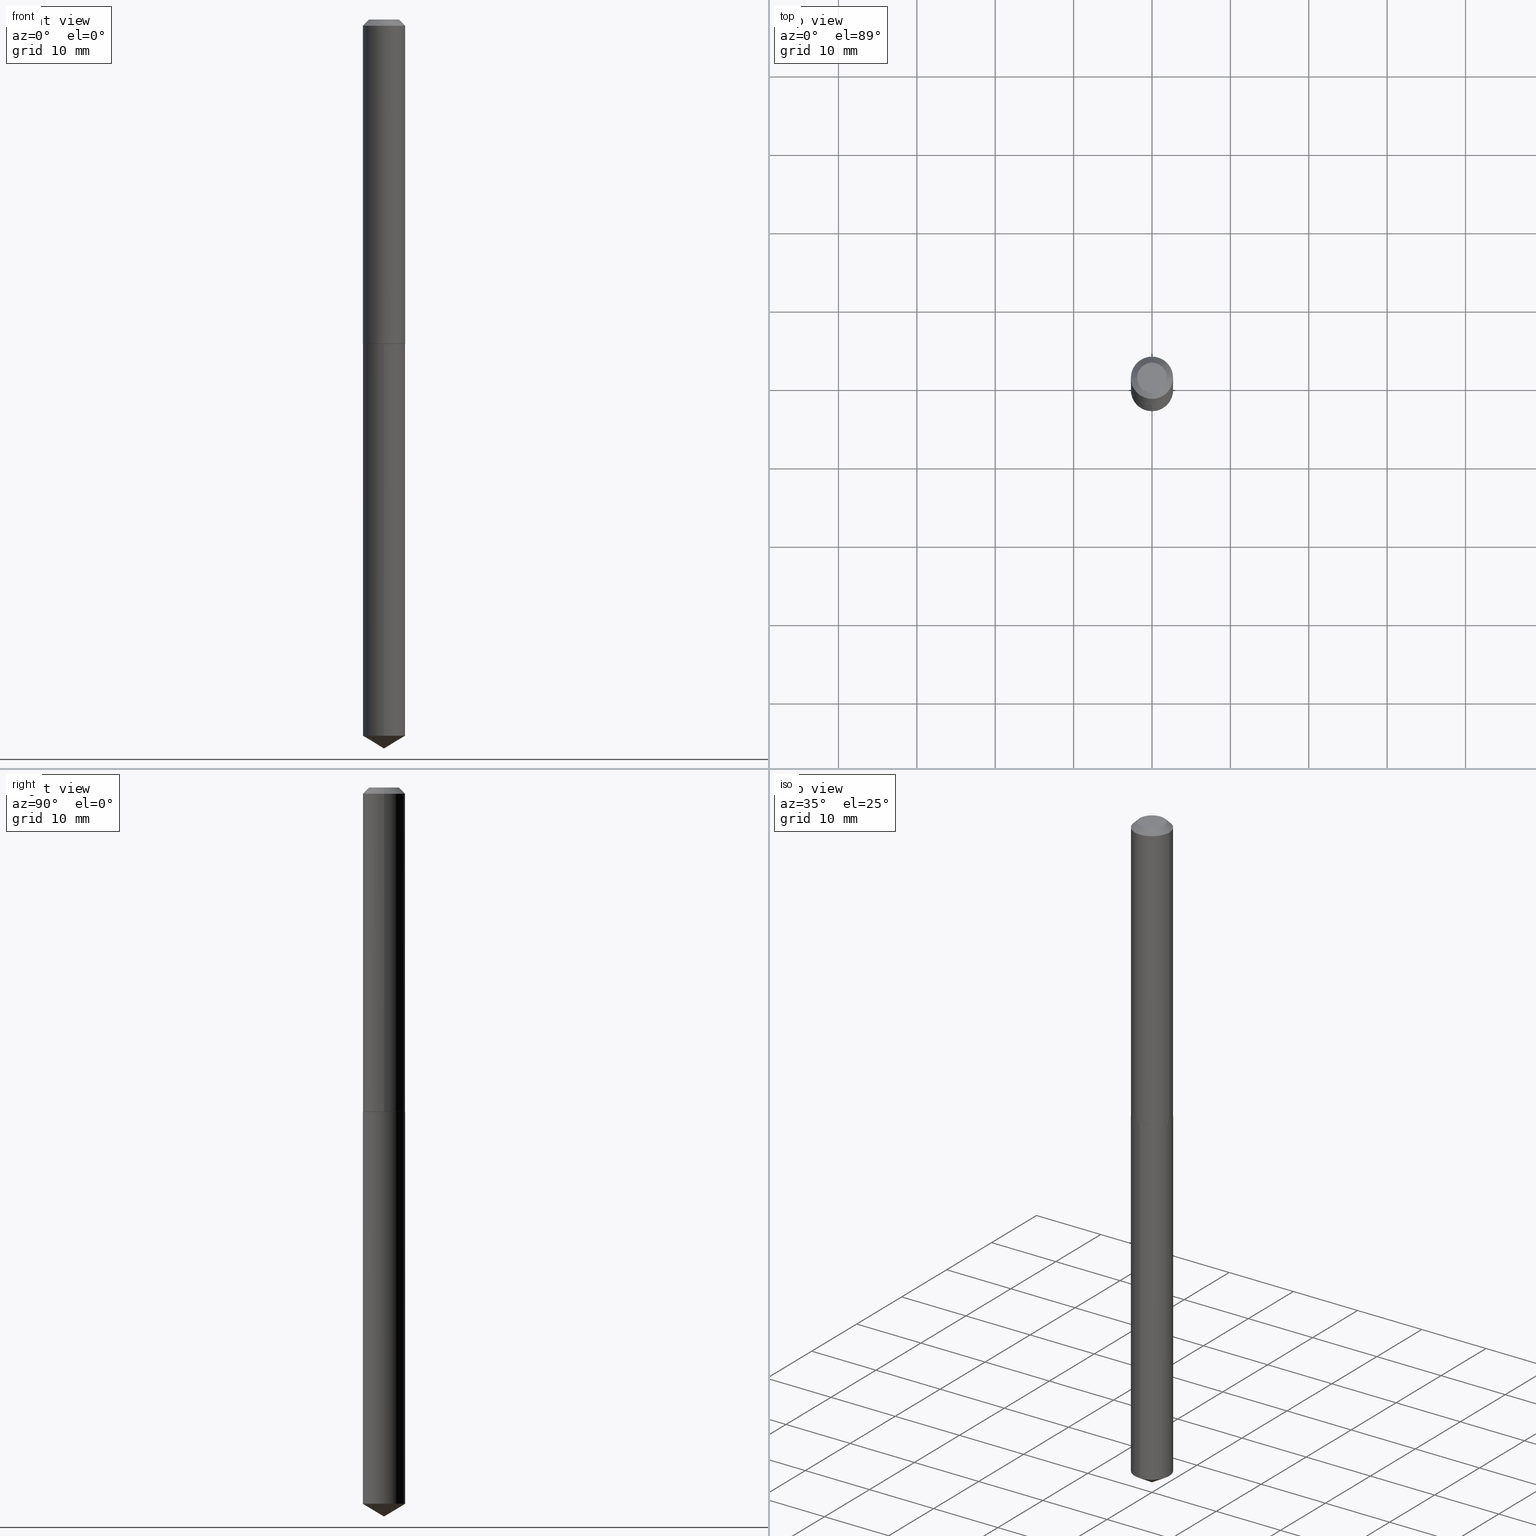
[diagram: canonical four-view strip — front | top / right | iso, engineering-drawing reading convention]
A machine part, canonical four-view strip (front | top / right | iso — engineering-drawing reading convention). The complete STEP part file that produces these views, byte-faithful:
ISO-10303-21;
HEADER;
FILE_DESCRIPTION (( 'STEP AP203' ),
    '1' );
FILE_NAME ('68329.STEP',
    '2024-04-23T13:07:08',
    ( '' ),
    ( '' ),
    'SwSTEP 2.0',
    'SolidWorks 2023',
    '' );
FILE_SCHEMA (( 'CONFIG_CONTROL_DESIGN' ));
ENDSEC;

DATA;
#1 = FACE_OUTER_BOUND ( 'NONE', #201, .T. ) ;
#2 = DIRECTION ( 'NONE',  ( -2.445471064129030757E-29, 3.491478105338975142E-15, 1.000000000000000000 ) ) ;
#3 = CARTESIAN_POINT ( 'NONE',  ( 0.1063000000000000195, -8.513977244768993380E-16, -0.03125000000000021511 ) ) ;
#4 = VECTOR ( 'NONE', #248, 39.37007874015748143 ) ;
#5 =( LENGTH_UNIT ( ) NAMED_UNIT ( * ) SI_UNIT ( $, .METRE. ) );
#6 = EDGE_CURVE ( 'NONE', #24, #20, #134, .T. ) ;
#7 = EDGE_CURVE ( 'NONE', #83, #351, #84, .T. ) ;
#8 = CARTESIAN_POINT ( 'NONE',  ( 3.984646872798061156E-29, -5.689019693511021444E-15, -1.629399999999999737 ) ) ;
#9 =( NAMED_UNIT ( * ) PLANE_ANGLE_UNIT ( ) SI_UNIT ( $, .RADIAN. ) );
#10 = EDGE_CURVE ( 'NONE', #168, #197, #125, .T. ) ;
#11 = AXIS2_PLACEMENT_3D ( 'NONE', #97, #214, #69 ) ;
#12 = AXIS2_PLACEMENT_3D ( 'NONE', #306, #213, #285 ) ;
#13 = ORIENTED_EDGE ( 'NONE', *, *, #165, .F. ) ;
#14 = AXIS2_PLACEMENT_3D ( 'NONE', #47, #295, #145 ) ;
#15 = ADVANCED_FACE ( 'NONE', ( #1 ), #363, .T. ) ;
#16 = ORIENTED_EDGE ( 'NONE', *, *, #141, .F. ) ;
#17 = ADVANCED_FACE ( 'NONE', ( #338 ), #66, .F. ) ;
#18 = DIRECTION ( 'NONE',  ( 1.000000000000000000, -6.982962677686265922E-15, 4.876182450887181548E-29 ) ) ;
#19 = DATE_AND_TIME ( #151, #40 ) ;
#20 = VERTEX_POINT ( 'NONE', #194 ) ;
#21 = FACE_OUTER_BOUND ( 'NONE', #177, .T. ) ;
#22 = PERSON_AND_ORGANIZATION ( #244, #48 ) ;
#23 = EDGE_CURVE ( 'NONE', #351, #108, #280, .T. ) ;
#24 = VERTEX_POINT ( 'NONE', #315 ) ;
#25 = AXIS2_PLACEMENT_3D ( 'NONE', #185, #127, #249 ) ;
#26 = AXIS2_PLACEMENT_3D ( 'NONE', #67, #243, #70 ) ;
#27 = ORIENTED_EDGE ( 'NONE', *, *, #23, .F. ) ;
#28 = CARTESIAN_POINT ( 'NONE',  ( 7.642090019328603538E-31, -1.091087918388490390E-16, -0.03125000000000021511 ) ) ;
#29 = APPROVAL_STATUS ( 'not_yet_approved' ) ;
#30 = DIRECTION ( 'NONE',  ( -2.445468806185136597E-29, 3.491481338843145583E-15, 1.000000000000000000 ) ) ;
#31 = CC_DESIGN_PERSON_AND_ORGANIZATION_ASSIGNMENT ( #358, #328, ( #75 ) ) ;
#32 = DIRECTION ( 'NONE',  ( -2.445471064129030757E-29, 3.491478105338975142E-15, 1.000000000000000000 ) ) ;
#33 = CC_DESIGN_PERSON_AND_ORGANIZATION_ASSIGNMENT ( #22, #52, ( #129 ) ) ;
#34 = AXIS2_PLACEMENT_3D ( 'NONE', #281, #131, #98 ) ;
#35 = DIRECTION ( 'NONE',  ( -2.445471064129030757E-29, 3.491478105338975142E-15, 1.000000000000000000 ) ) ;
#36 = APPROVAL ( #60, 'UNSPECIFIED' ) ;
#37 = FACE_OUTER_BOUND ( 'NONE', #136, .T. ) ;
#38 = CARTESIAN_POINT ( 'NONE',  ( -7.422889326380102026E-16, -0.1063000000000056955, -1.629899999999999682 ) ) ;
#39 = VECTOR ( 'NONE', #359, 39.37007874015748854 ) ;
#40 = LOCAL_TIME ( 9, 7, 8.000000000000000000, #198 ) ;
#41 = FACE_OUTER_BOUND ( 'NONE', #46, .T. ) ;
#42 = VECTOR ( 'NONE', #309, 39.37007874015748143 ) ;
#43 = ORIENTED_EDGE ( 'NONE', *, *, #193, .T. ) ;
#44 = EDGE_CURVE ( 'NONE', #387, #108, #330, .T. ) ;
#45 = EDGE_CURVE ( 'NONE', #294, #197, #246, .T. ) ;
#46 = EDGE_LOOP ( 'NONE', ( #99, #288, #116 ) ) ;
#47 = CARTESIAN_POINT ( 'NONE',  ( 3.985869607201153958E-29, -5.690765434180442948E-15, -1.629899999999999904 ) ) ;
#48 = ORGANIZATION ( 'UNSPECIFIED', 'UNSPECIFIED', '' ) ;
#49 = COORDINATED_UNIVERSAL_TIME_OFFSET ( 5, 0, .BEHIND. ) ;
#50 = EDGE_LOOP ( 'NONE', ( #233, #87, #340, #255 ) ) ;
#51 = CARTESIAN_POINT ( 'NONE',  ( 7.642090019328603538E-31, -1.091087918388490390E-16, -0.03125000000000021511 ) ) ;
#52 = PERSON_AND_ORGANIZATION_ROLE ( 'creator' ) ;
#53 = EDGE_LOOP ( 'NONE', ( #139, #76, #62, #27 ) ) ;
#54 = PLANE ( 'NONE',  #178 ) ;
#55 = EDGE_CURVE ( 'NONE', #303, #143, #95, .T. ) ;
#56 = APPLICATION_PROTOCOL_DEFINITION ( 'international standard', 'config_control_design', 1994, #287 ) ;
#57 = ORIENTED_EDGE ( 'NONE', *, *, #80, .T. ) ;
#58 = DIRECTION ( 'NONE',  ( 1.000000000000000000, -6.982962677686265922E-15, 0.000000000000000000 ) ) ;
#59 = AXIS2_PLACEMENT_3D ( 'NONE', #267, #234, #271 ) ;
#60 = APPROVAL_STATUS ( 'not_yet_approved' ) ;
#61 = AXIS2_PLACEMENT_3D ( 'NONE', #160, #32, #159 ) ;
#62 = ORIENTED_EDGE ( 'NONE', *, *, #44, .T. ) ;
#63 = DIRECTION ( 'NONE',  ( 1.000000000000000000, -6.982962677686265922E-15, 0.000000000000000000 ) ) ;
#64 = COORDINATED_UNIVERSAL_TIME_OFFSET ( 5, 0, .BEHIND. ) ;
#65 = DIRECTION ( 'NONE',  ( -2.445468806185136597E-29, 3.491481338843145583E-15, 1.000000000000000000 ) ) ;
#66 = PLANE ( 'NONE',  #25 ) ;
#67 = CARTESIAN_POINT ( 'NONE',  ( 0.000000000000000000, 0.000000000000000000, 0.000000000000000000 ) ) ;
#68 = VECTOR ( 'NONE', #202, 39.37007874015748143 ) ;
#69 = DIRECTION ( 'NONE',  ( -6.982962677686265922E-15, -1.000000000000000000, 2.569941668545873170E-15 ) ) ;
#70 = DIRECTION ( 'NONE',  ( 1.000000000000000000, -6.982962677686266711E-15, 4.876176775795935793E-29 ) ) ;
#71 = FACE_OUTER_BOUND ( 'NONE', #153, .T. ) ;
#72 = CIRCLE ( 'NONE', #191, 0.1063000000000002276 ) ;
#73 = CIRCLE ( 'NONE', #61, 0.1063000000000000056 ) ;
#74 =( NAMED_UNIT ( * ) SI_UNIT ( $, .STERADIAN. ) SOLID_ANGLE_UNIT ( ) );
#75 = PRODUCT ( '68329', '68329', '', ( #207 ) ) ;
#76 = ORIENTED_EDGE ( 'NONE', *, *, #96, .T. ) ;
#77 = CC_DESIGN_PERSON_AND_ORGANIZATION_ASSIGNMENT ( #382, #93, ( #135 ) ) ;
#78 = AXIS2_PLACEMENT_3D ( 'NONE', #200, #388, #109 ) ;
#79 = ORIENTED_EDGE ( 'NONE', *, *, #227, .F. ) ;
#80 = EDGE_CURVE ( 'NONE', #351, #83, #217, .T. ) ;
#81 = EDGE_CURVE ( 'NONE', #325, #106, #235, .T. ) ;
#82 = ORIENTED_EDGE ( 'NONE', *, *, #44, .F. ) ;
#83 = VERTEX_POINT ( 'NONE', #229 ) ;
#84 = CIRCLE ( 'NONE', #237, 0.07505000000000000560 ) ;
#85 = CONICAL_SURFACE ( 'NONE', #316, 65.52281426576809054, 1.029744258676652313 ) ;
#86 = APPROVAL_DATE_TIME ( #19, #36 ) ;
#87 = ORIENTED_EDGE ( 'NONE', *, *, #10, .T. ) ;
#88 = DIRECTION ( 'NONE',  ( -2.445468806185136597E-29, 3.491481338843145583E-15, 1.000000000000000000 ) ) ;
#89 = PERSON_AND_ORGANIZATION ( #244, #48 ) ;
#90 = ORIENTED_EDGE ( 'NONE', *, *, #81, .F. ) ;
#91 = ORIENTED_EDGE ( 'NONE', *, *, #147, .F. ) ;
#92 = DIRECTION ( 'NONE',  ( 0.7071067811863905872, -2.468850131080613074E-15, 0.7071067811867044473 ) ) ;
#93 = PERSON_AND_ORGANIZATION_ROLE ( 'classification_officer' ) ;
#94 = AXIS2_PLACEMENT_3D ( 'NONE', #51, #173, #182 ) ;
#95 = LINE ( 'NONE', #258, #320 ) ;
#96 = EDGE_CURVE ( 'NONE', #83, #387, #113, .T. ) ;
#97 = CARTESIAN_POINT ( 'NONE',  ( 3.985869607201153958E-29, -5.690765434180442948E-15, -1.629899999999999904 ) ) ;
#98 = DIRECTION ( 'NONE',  ( 1.000000000000000000, -6.982962677686266711E-15, 4.876176775795935793E-29 ) ) ;
#99 = ORIENTED_EDGE ( 'NONE', *, *, #365, .F. ) ;
#100 = EDGE_CURVE ( 'NONE', #143, #20, #72, .T. ) ;
#101 = DIRECTION ( 'NONE',  ( 2.438088387897960049E-29, -3.491481338843145188E-15, -1.000000000000000000 ) ) ;
#102 = DIRECTION ( 'NONE',  ( 1.000000000000000000, -6.982962677686263555E-15, 0.000000000000000000 ) ) ;
#103 = CARTESIAN_POINT ( 'NONE',  ( -0.1063000000000000195, 6.331801407992011367E-16, -0.03125000000000021511 ) ) ;
#104 = CIRCLE ( 'NONE', #224, 0.1058000000000002688 ) ;
#105 = ORIENTED_EDGE ( 'NONE', *, *, #147, .T. ) ;
#106 = VERTEX_POINT ( 'NONE', #319 ) ;
#107 = PRODUCT_RELATED_PRODUCT_CATEGORY ( 'detail', '', ( #75 ) ) ;
#108 = VERTEX_POINT ( 'NONE', #171 ) ;
#109 = DIRECTION ( 'NONE',  ( -6.982962677686265922E-15, -1.000000000000000000, 2.569941668545873170E-15 ) ) ;
#110 = DESIGN_CONTEXT ( 'detailed design', #196, 'design' ) ;
#111 = ADVANCED_FACE ( 'NONE', ( #326 ), #223, .T. ) ;
#112 = ORIENTED_EDGE ( 'NONE', *, *, #6, .T. ) ;
#113 = LINE ( 'NONE', #175, #68 ) ;
#114 = CIRCLE ( 'NONE', #331, 0.1058000000000002688 ) ;
#115 = DATE_AND_TIME ( #232, #265 ) ;
#116 = ORIENTED_EDGE ( 'NONE', *, *, #193, .F. ) ;
#117 = DIRECTION ( 'NONE',  ( 1.000000000000000000, -6.982962677686263555E-15, 0.000000000000000000 ) ) ;
#118 = DIRECTION ( 'NONE',  ( -2.445471064129030757E-29, 3.491478105338974747E-15, 1.000000000000000000 ) ) ;
#119 = LINE ( 'NONE', #384, #221 ) ;
#120 = CARTESIAN_POINT ( 'NONE',  ( -0.1063000000000002276, -4.933712765398033723E-15, -1.629399999999999737 ) ) ;
#121 = ADVANCED_FACE ( 'NONE', ( #148 ), #54, .F. ) ;
#122 = DIRECTION ( 'NONE',  ( 1.000000000000000000, -6.982962677686265922E-15, 0.000000000000000000 ) ) ;
#123 = PERSON_AND_ORGANIZATION ( #244, #48 ) ;
#124 = AXIS2_PLACEMENT_3D ( 'NONE', #324, #386, #356 ) ;
#125 = LINE ( 'NONE', #241, #341 ) ;
#126 = DIRECTION ( 'NONE',  ( 6.090539988449770547E-15, 0.8571673007021128887, 0.5150380749100529343 ) ) ;
#127 = DIRECTION ( 'NONE',  ( 2.445471064129030477E-29, -3.491478105338974747E-15, -1.000000000000000000 ) ) ;
#128 = LINE ( 'NONE', #219, #4 ) ;
#129 = PRODUCT_DEFINITION_FORMATION_WITH_SPECIFIED_SOURCE ( 'ANY', '', #75, .NOT_KNOWN. ) ;
#130 = PRODUCT_DEFINITION_SHAPE ( 'NONE', 'NONE',  #222 ) ;
#131 = DIRECTION ( 'NONE',  ( -2.445468806185136597E-29, 3.491481338843145583E-15, 1.000000000000000000 ) ) ;
#132 = DIRECTION ( 'NONE',  ( -2.445468806185136597E-29, 3.491481338843145583E-15, 1.000000000000000000 ) ) ;
#133 = MANIFOLD_SOLID_BREP ( 'Body-Move/Copy2[2]', #312 ) ;
#134 = LINE ( 'NONE', #120, #250 ) ;
#135 = SECURITY_CLASSIFICATION ( '', '', #360 ) ;
#136 = EDGE_LOOP ( 'NONE', ( #366, #228, #383, #91 ) ) ;
#137 = CIRCLE ( 'NONE', #14, 0.1063000000000000056 ) ;
#138 = CONICAL_SURFACE ( 'NONE', #251, 0.1063000000000002276, 0.7853981633972263454 ) ;
#139 = ORIENTED_EDGE ( 'NONE', *, *, #7, .F. ) ;
#140 = DIRECTION ( 'NONE',  ( -2.445468806185136877E-29, 3.491481338843145188E-15, 1.000000000000000000 ) ) ;
#141 = EDGE_CURVE ( 'NONE', #197, #294, #137, .T. ) ;
#142 = DIRECTION ( 'NONE',  ( -2.445468806185136597E-29, 3.491481338843145583E-15, 1.000000000000000000 ) ) ;
#143 = VERTEX_POINT ( 'NONE', #290 ) ;
#144 = AXIS2_PLACEMENT_3D ( 'NONE', #311, #2, #154 ) ;
#145 = DIRECTION ( 'NONE',  ( -6.982962677686265922E-15, -1.000000000000000000, 2.569941668545873170E-15 ) ) ;
#146 = ORIENTED_EDGE ( 'NONE', *, *, #10, .F. ) ;
#147 = EDGE_CURVE ( 'NONE', #108, #387, #369, .T. ) ;
#148 = FACE_OUTER_BOUND ( 'NONE', #158, .T. ) ;
#149 = CALENDAR_DATE ( 2024, 23, 4 ) ;
#150 = CARTESIAN_POINT ( 'NONE',  ( 3.984646872798061156E-29, -5.689019693511021444E-15, -1.629399999999999737 ) ) ;
#151 = CALENDAR_DATE ( 2024, 23, 4 ) ;
#152 = CC_DESIGN_PERSON_AND_ORGANIZATION_ASSIGNMENT ( #123, #176, ( #129 ) ) ;
#153 = EDGE_LOOP ( 'NONE', ( #57, #322 ) ) ;
#154 = DIRECTION ( 'NONE',  ( -6.982962677686265922E-15, -1.000000000000000000, 2.569941668545873170E-15 ) ) ;
#155 = LOCAL_TIME ( 9, 7, 8.000000000000000000, #240 ) ;
#156 = PLANE ( 'NONE',  #161 ) ;
#157 = EDGE_CURVE ( 'NONE', #20, #108, #119, .T. ) ;
#158 = EDGE_LOOP ( 'NONE', ( #13, #260 ) ) ;
#159 = DIRECTION ( 'NONE',  ( -6.982962677686265922E-15, -1.000000000000000000, 5.139883337091746339E-15 ) ) ;
#160 = CARTESIAN_POINT ( 'NONE',  ( 8.797648208516961832E-29, -1.256069731792417687E-14, -3.597528516197369797 ) ) ;
#161 = AXIS2_PLACEMENT_3D ( 'NONE', #247, #101, #308 ) ;
#162 = CARTESIAN_POINT ( 'NONE',  ( 8.953847754202032302E-29, -1.278369793488812317E-14, -3.661399999999999988 ) ) ;
#163 = ADVANCED_FACE ( 'NONE', ( #332 ), #170, .T. ) ;
#164 =( CONVERSION_BASED_UNIT ( 'INCH', #314 ) LENGTH_UNIT ( ) NAMED_UNIT ( #344 ) );
#165 = EDGE_CURVE ( 'NONE', #303, #24, #114, .T. ) ;
#166 = CC_DESIGN_SECURITY_CLASSIFICATION ( #135, ( #129 ) ) ;
#167 = ORIENTED_EDGE ( 'NONE', *, *, #365, .T. ) ;
#168 = VERTEX_POINT ( 'NONE', #362 ) ;
#169 = ADVANCED_FACE ( 'NONE', ( #21 ), #138, .T. ) ;
#170 = CONICAL_SURFACE ( 'NONE', #94, 0.1063000000000000195, 0.7853981633974452814 ) ;
#171 = CARTESIAN_POINT ( 'NONE',  ( -0.1063000000000000195, -2.143757314561946763E-15, -0.03125000000000021511 ) ) ;
#172 = ORIENTED_EDGE ( 'NONE', *, *, #165, .T. ) ;
#173 = DIRECTION ( 'NONE',  ( 2.445468806185136597E-29, -3.491481338843145583E-15, -1.000000000000000000 ) ) ;
#174 = DATE_AND_TIME ( #203, #286 ) ;
#175 = CARTESIAN_POINT ( 'NONE',  ( 0.1063000000000000195, -8.383797290019630379E-16, -0.03125000000000021511 ) ) ;
#176 = PERSON_AND_ORGANIZATION_ROLE ( 'design_supplier' ) ;
#177 = EDGE_LOOP ( 'NONE', ( #172, #112, #264, #355 ) ) ;
#178 = AXIS2_PLACEMENT_3D ( 'NONE', #180, #385, #298 ) ;
#179 = ADVANCED_FACE ( 'NONE', ( #357 ), #274, .T. ) ;
#180 = CARTESIAN_POINT ( 'NONE',  ( 1.047059373972477714E-29, -9.899308954854708894E-15, -1.629899999999999904 ) ) ;
#181 = APPLICATION_PROTOCOL_DEFINITION ( 'international standard', 'config_control_design', 1994, #196 ) ;
#182 = DIRECTION ( 'NONE',  ( -1.000000000000000000, 6.982962677686265922E-15, 0.000000000000000000 ) ) ;
#183 = APPROVAL_DATE_TIME ( #115, #337 ) ;
#184 = ADVANCED_BREP_SHAPE_REPRESENTATION ( '68329', ( #270, #133, #124 ), #284 ) ;
#185 = CARTESIAN_POINT ( 'NONE',  ( 3.985869607201153958E-29, -5.690765434180442948E-15, -1.629899999999999904 ) ) ;
#186 = EDGE_CURVE ( 'NONE', #106, #294, #189, .T. ) ;
#187 = FACE_OUTER_BOUND ( 'NONE', #379, .T. ) ;
#188 = DIRECTION ( 'NONE',  ( 1.000000000000000000, -6.982962677686265922E-15, 0.000000000000000000 ) ) ;
#189 = LINE ( 'NONE', #242, #42 ) ;
#190 = CYLINDRICAL_SURFACE ( 'NONE', #144, 0.1063000000000000056 ) ;
#191 = AXIS2_PLACEMENT_3D ( 'NONE', #210, #323, #380 ) ;
#192 = AXIS2_PLACEMENT_3D ( 'NONE', #28, #30, #63 ) ;
#193 = EDGE_CURVE ( 'NONE', #168, #106, #277, .T. ) ;
#194 = CARTESIAN_POINT ( 'NONE',  ( -0.1063000000000002276, -4.933712765398033723E-15, -1.629399999999999737 ) ) ;
#195 = ADVANCED_FACE ( 'NONE', ( #41 ), #85, .T. ) ;
#196 = APPLICATION_CONTEXT ( 'configuration controlled 3d designs of mechanical parts and assemblies' ) ;
#197 = VERTEX_POINT ( 'NONE', #343 ) ;
#198 = COORDINATED_UNIVERSAL_TIME_OFFSET ( 5, 0, .BEHIND. ) ;
#199 = ORIENTED_EDGE ( 'NONE', *, *, #334, .T. ) ;
#200 = CARTESIAN_POINT ( 'NONE',  ( 3.985869607201153958E-29, -5.690765434180442948E-15, -1.629899999999999904 ) ) ;
#201 = EDGE_LOOP ( 'NONE', ( #146, #43, #230, #16 ) ) ;
#202 = DIRECTION ( 'NONE',  ( 0.7071067811865453523, -7.319954787623248157E-15, -0.7071067811865496822 ) ) ;
#203 = CALENDAR_DATE ( 2024, 23, 4 ) ;
#204 = ORIENTED_EDGE ( 'NONE', *, *, #96, .F. ) ;
#205 = ADVANCED_FACE ( 'NONE', ( #339 ), #190, .T. ) ;
#206 = CARTESIAN_POINT ( 'NONE',  ( -5.839929314523221596E-48, 8.337871319499147471E-34, 2.388061258337352918E-19 ) ) ;
#207 = MECHANICAL_CONTEXT ( 'NONE', #287, 'mechanical' ) ;
#208 = VECTOR ( 'NONE', #220, 39.37007874015748143 ) ;
#209 = CONICAL_SURFACE ( 'NONE', #12, 0.1063000000000000195, 0.7853981633974452814 ) ;
#210 = CARTESIAN_POINT ( 'NONE',  ( 3.984646872798061156E-29, -5.689019693511021444E-15, -1.629399999999999737 ) ) ;
#211 = DATE_TIME_ROLE ( 'classification_date' ) ;
#212 = DIRECTION ( 'NONE',  ( 1.000000000000000000, -6.982962677686265922E-15, 4.876182450887181548E-29 ) ) ;
#213 = DIRECTION ( 'NONE',  ( 2.445468806185136597E-29, -3.491481338843145583E-15, -1.000000000000000000 ) ) ;
#214 = DIRECTION ( 'NONE',  ( -2.445471064129030757E-29, 3.491478105338975142E-15, 1.000000000000000000 ) ) ;
#215 = CARTESIAN_POINT ( 'NONE',  ( -8.732454427755737349E-28, 1.246760647215547442E-13, 35.70867874015748100 ) ) ;
#216 = DIRECTION ( 'NONE',  ( -6.982962677686268288E-15, -1.000000000000000000, 3.468864327941612358E-15 ) ) ;
#217 = CIRCLE ( 'NONE', #283, 0.07505000000000000560 ) ;
#218 = CC_DESIGN_PERSON_AND_ORGANIZATION_ASSIGNMENT ( #236, #262, ( #222 ) ) ;
#219 = CARTESIAN_POINT ( 'NONE',  ( 0.1063000000000001166, -7.422889326380509276E-16, 5.183375912671085656E-30 ) ) ;
#220 = DIRECTION ( 'NONE',  ( -0.7071067811865453523, 2.468850131082234184E-15, -0.7071067811865496822 ) ) ;
#221 = VECTOR ( 'NONE', #140, 39.37007874015748143 ) ;
#222 = PRODUCT_DEFINITION ( 'UNKNOWN', '', #129, #110 ) ;
#223 = CONICAL_SURFACE ( 'NONE', #59, 0.1063000000000002276, 0.7853981633972263454 ) ;
#224 = AXIS2_PLACEMENT_3D ( 'NONE', #282, #65, #188 ) ;
#225 = ORIENTED_EDGE ( 'NONE', *, *, #157, .T. ) ;
#226 = EDGE_LOOP ( 'NONE', ( #292, #350 ) ) ;
#227 = EDGE_CURVE ( 'NONE', #143, #387, #128, .T. ) ;
#228 = ORIENTED_EDGE ( 'NONE', *, *, #329, .T. ) ;
#229 = CARTESIAN_POINT ( 'NONE',  ( 0.07505000000000001947, -6.766300518673583070E-16, 2.388061258379330487E-19 ) ) ;
#230 = ORIENTED_EDGE ( 'NONE', *, *, #186, .T. ) ;
#231 = APPROVAL_PERSON_ORGANIZATION ( #272, #36, #291 ) ;
#232 = CALENDAR_DATE ( 2024, 23, 4 ) ;
#233 = ORIENTED_EDGE ( 'NONE', *, *, #372, .T. ) ;
#234 = DIRECTION ( 'NONE',  ( -2.445468806185136597E-29, 3.491481338843145583E-15, 1.000000000000000000 ) ) ;
#235 = LINE ( 'NONE', #261, #39 ) ;
#236 = PERSON_AND_ORGANIZATION ( #244, #48 ) ;
#237 = AXIS2_PLACEMENT_3D ( 'NONE', #307, #276, #212 ) ;
#238 = VECTOR ( 'NONE', #126, 39.37007874015748854 ) ;
#239 = DIRECTION ( 'NONE',  ( -2.445468806185136597E-29, 3.491481338843145583E-15, 1.000000000000000000 ) ) ;
#240 = COORDINATED_UNIVERSAL_TIME_OFFSET ( 5, 0, .BEHIND. ) ;
#241 = CARTESIAN_POINT ( 'NONE',  ( 7.553069281130262762E-16, 0.1062999999999943157, -1.629900000000000349 ) ) ;
#242 = CARTESIAN_POINT ( 'NONE',  ( -7.422889326380102026E-16, -0.1063000000000056955, -1.629899999999999682 ) ) ;
#243 = DIRECTION ( 'NONE',  ( -2.445468806185136597E-29, 3.491481338843145583E-15, 1.000000000000000000 ) ) ;
#244 = PERSON ( 'UNSPECIFIED', 'UNSPECIFIED', 'UNSPECIFIED', ('UNSPECIFIED'), ('UNSPECIFIED'), ('UNSPECIFIED') ) ;
#245 = LINE ( 'NONE', #279, #238 ) ;
#246 = CIRCLE ( 'NONE', #78, 0.1063000000000000056 ) ;
#247 = CARTESIAN_POINT ( 'NONE',  ( -2.919964657261610798E-48, 4.168935659749573735E-34, 1.194030629168676459E-19 ) ) ;
#248 = DIRECTION ( 'NONE',  ( -2.445468806185136877E-29, 3.491481338843145188E-15, 1.000000000000000000 ) ) ;
#249 = DIRECTION ( 'NONE',  ( 6.982962677686265922E-15, 1.000000000000000000, -3.491478105338974747E-15 ) ) ;
#250 = VECTOR ( 'NONE', #335, 39.37007874015748143 ) ;
#251 = AXIS2_PLACEMENT_3D ( 'NONE', #150, #142, #117 ) ;
#252 = APPROVAL ( #29, 'UNSPECIFIED' ) ;
#253 = ORIENTED_EDGE ( 'NONE', *, *, #372, .F. ) ;
#254 = CONICAL_SURFACE ( 'NONE', #376, 65.52281426576809054, 1.029744258676652313 ) ;
#255 = ORIENTED_EDGE ( 'NONE', *, *, #186, .F. ) ;
#256 = ADVANCED_FACE ( 'NONE', ( #37 ), #364, .T. ) ;
#257 = CARTESIAN_POINT ( 'NONE',  ( 7.642090019328603538E-31, -1.091087918388490390E-16, -0.03125000000000021511 ) ) ;
#258 = CARTESIAN_POINT ( 'NONE',  ( 0.1063000000000002276, -6.431308626149072372E-15, -1.629399999999999737 ) ) ;
#259 = COORDINATED_UNIVERSAL_TIME_OFFSET ( 5, 0, .BEHIND. ) ;
#260 = ORIENTED_EDGE ( 'NONE', *, *, #334, .F. ) ;
#261 = CARTESIAN_POINT ( 'NONE',  ( 8.953840393756526390E-29, -1.278370847546501841E-14, -3.661399999999999988 ) ) ;
#262 = PERSON_AND_ORGANIZATION_ROLE ( 'creator' ) ;
#263 = ADVANCED_FACE ( 'NONE', ( #367 ), #254, .T. ) ;
#264 = ORIENTED_EDGE ( 'NONE', *, *, #100, .F. ) ;
#265 = LOCAL_TIME ( 9, 7, 8.000000000000000000, #64 ) ;
#266 = CC_DESIGN_APPROVAL ( #337, ( #135 ) ) ;
#267 = CARTESIAN_POINT ( 'NONE',  ( 3.984646872798061156E-29, -5.689019693511021444E-15, -1.629399999999999737 ) ) ;
#268 = DATE_AND_TIME ( #149, #374 ) ;
#269 = ORIENTED_EDGE ( 'NONE', *, *, #80, .F. ) ;
#270 = MANIFOLD_SOLID_BREP ( 'Body-Move/Copy2[1]', #353 ) ;
#271 = DIRECTION ( 'NONE',  ( 1.000000000000000000, -6.982962677686263555E-15, 0.000000000000000000 ) ) ;
#272 = PERSON_AND_ORGANIZATION ( #244, #48 ) ;
#273 = ORIENTED_EDGE ( 'NONE', *, *, #23, .T. ) ;
#274 = CYLINDRICAL_SURFACE ( 'NONE', #34, 0.1063000000000001166 ) ;
#275 = PERSON_AND_ORGANIZATION ( #244, #48 ) ;
#276 = DIRECTION ( 'NONE',  ( -2.445468806185136597E-29, 3.491481338843145583E-15, 1.000000000000000000 ) ) ;
#277 = CIRCLE ( 'NONE', #361, 0.1063000000000000056 ) ;
#278 = DIRECTION ( 'NONE',  ( -6.982962677686265922E-15, -1.000000000000000000, 5.139883337091746339E-15 ) ) ;
#279 = CARTESIAN_POINT ( 'NONE',  ( 8.953847818744450602E-29, -1.278369793488812317E-14, -3.661399999999999988 ) ) ;
#280 = LINE ( 'NONE', #103, #208 ) ;
#281 = CARTESIAN_POINT ( 'NONE',  ( 0.000000000000000000, 0.000000000000000000, 0.000000000000000000 ) ) ;
#282 = CARTESIAN_POINT ( 'NONE',  ( 3.985869607201153958E-29, -5.690765434180442948E-15, -1.629899999999999904 ) ) ;
#283 = AXIS2_PLACEMENT_3D ( 'NONE', #206, #239, #18 ) ;
#284 =( GEOMETRIC_REPRESENTATION_CONTEXT ( 3 ) GLOBAL_UNCERTAINTY_ASSIGNED_CONTEXT ( ( #299 ) ) GLOBAL_UNIT_ASSIGNED_CONTEXT ( ( #164, #9, #74 ) ) REPRESENTATION_CONTEXT ( 'NONE', 'WORKASPACE' ) );
#285 = DIRECTION ( 'NONE',  ( -1.000000000000000000, 6.982962677686265922E-15, 0.000000000000000000 ) ) ;
#286 = LOCAL_TIME ( 9, 7, 8.000000000000000000, #49 ) ;
#287 = APPLICATION_CONTEXT ( 'configuration controlled 3d designs of mechanical parts and assemblies' ) ;
#288 = ORIENTED_EDGE ( 'NONE', *, *, #81, .T. ) ;
#289 = ORIENTED_EDGE ( 'NONE', *, *, #100, .T. ) ;
#290 = CARTESIAN_POINT ( 'NONE',  ( 0.1063000000000002276, -6.431308626149072372E-15, -1.629399999999999737 ) ) ;
#291 = APPROVAL_ROLE ( '' ) ;
#292 = ORIENTED_EDGE ( 'NONE', *, *, #45, .T. ) ;
#293 = DIRECTION ( 'NONE',  ( -2.445468806185136597E-29, 3.491481338843145583E-15, 1.000000000000000000 ) ) ;
#294 = VERTEX_POINT ( 'NONE', #38 ) ;
#295 = DIRECTION ( 'NONE',  ( -2.445471064129030757E-29, 3.491478105338975142E-15, 1.000000000000000000 ) ) ;
#296 = APPROVAL_DATE_TIME ( #268, #252 ) ;
#297 = EDGE_LOOP ( 'NONE', ( #317, #199, #318, #349 ) ) ;
#298 = DIRECTION ( 'NONE',  ( 1.000000000000000000, -6.982962677686265922E-15, 4.876176775795935793E-29 ) ) ;
#299 = UNCERTAINTY_MEASURE_WITH_UNIT (LENGTH_MEASURE( 1.000000000000000082E-05 ), #164, 'distance_accuracy_value', 'NONE');
#300 = DATE_AND_TIME ( #352, #155 ) ;
#301 = CARTESIAN_POINT ( 'NONE',  ( 3.985869607201153958E-29, -5.690765434180442948E-15, -1.629899999999999904 ) ) ;
#302 = SHAPE_DEFINITION_REPRESENTATION ( #130, #184 ) ;
#303 = VERTEX_POINT ( 'NONE', #346 ) ;
#304 = CARTESIAN_POINT ( 'NONE',  ( 8.797648208516961832E-29, -1.256069731792417687E-14, -3.597528516197369797 ) ) ;
#305 = CC_DESIGN_APPROVAL ( #252, ( #129 ) ) ;
#306 = CARTESIAN_POINT ( 'NONE',  ( 7.642090019328603538E-31, -1.091087918388490390E-16, -0.03125000000000021511 ) ) ;
#307 = CARTESIAN_POINT ( 'NONE',  ( -5.839929314523221596E-48, 8.337871319499147471E-34, 2.388061258337352918E-19 ) ) ;
#308 = DIRECTION ( 'NONE',  ( -1.000000000000000000, 6.982962677686265922E-15, -4.876176775795935793E-29 ) ) ;
#309 = DIRECTION ( 'NONE',  ( -2.445471064129030757E-29, 3.491478105338974747E-15, 1.000000000000000000 ) ) ;
#310 = ADVANCED_FACE ( 'NONE', ( #187 ), #209, .T. ) ;
#311 = CARTESIAN_POINT ( 'NONE',  ( 3.985869607201153958E-29, -5.690765434180442948E-15, -1.629899999999999904 ) ) ;
#312 = CLOSED_SHELL ( 'NONE', ( #163, #179, #169, #121, #111, #256, #310, #348 ) ) ;
#313 = CIRCLE ( 'NONE', #347, 0.1063000000000002276 ) ;
#314 = LENGTH_MEASURE_WITH_UNIT ( LENGTH_MEASURE( 0.02539999999999999897 ), #5 );
#315 = CARTESIAN_POINT ( 'NONE',  ( -0.1058000000000002688, -4.936361992572144925E-15, -1.629899999999999904 ) ) ;
#316 = AXIS2_PLACEMENT_3D ( 'NONE', #215, #35, #216 ) ;
#317 = ORIENTED_EDGE ( 'NONE', *, *, #6, .F. ) ;
#318 = ORIENTED_EDGE ( 'NONE', *, *, #55, .T. ) ;
#319 = CARTESIAN_POINT ( 'NONE',  ( -7.422889326379620821E-16, -0.1063000000000125511, -3.597528516197369353 ) ) ;
#320 = VECTOR ( 'NONE', #92, 39.37007874015748143 ) ;
#321 = CC_DESIGN_APPROVAL ( #36, ( #222 ) ) ;
#322 = ORIENTED_EDGE ( 'NONE', *, *, #7, .T. ) ;
#323 = DIRECTION ( 'NONE',  ( -2.445468806185136597E-29, 3.491481338843145583E-15, 1.000000000000000000 ) ) ;
#324 = CARTESIAN_POINT ( 'NONE',  ( 0.000000000000000000, 0.000000000000000000, 0.000000000000000000 ) ) ;
#325 = VERTEX_POINT ( 'NONE', #162 ) ;
#326 = FACE_OUTER_BOUND ( 'NONE', #297, .T. ) ;
#327 = DATE_TIME_ROLE ( 'creation_date' ) ;
#328 = PERSON_AND_ORGANIZATION_ROLE ( 'design_owner' ) ;
#329 = EDGE_CURVE ( 'NONE', #20, #143, #313, .T. ) ;
#330 = CIRCLE ( 'NONE', #381, 0.1063000000000000195 ) ;
#331 = AXIS2_PLACEMENT_3D ( 'NONE', #301, #293, #122 ) ;
#332 = FACE_OUTER_BOUND ( 'NONE', #53, .T. ) ;
#333 = APPROVAL_STATUS ( 'not_yet_approved' ) ;
#334 = EDGE_CURVE ( 'NONE', #24, #303, #104, .T. ) ;
#335 = DIRECTION ( 'NONE',  ( -0.7071067811863905872, 7.493145998869786180E-15, 0.7071067811867044473 ) ) ;
#336 = DIRECTION ( 'NONE',  ( -2.445471064129030757E-29, 3.491478105338975142E-15, 1.000000000000000000 ) ) ;
#337 = APPROVAL ( #333, 'UNSPECIFIED' ) ;
#338 = FACE_OUTER_BOUND ( 'NONE', #226, .T. ) ;
#339 = FACE_OUTER_BOUND ( 'NONE', #50, .T. ) ;
#340 = ORIENTED_EDGE ( 'NONE', *, *, #45, .F. ) ;
#341 = VECTOR ( 'NONE', #118, 39.37007874015748143 ) ;
#342 = APPROVAL_PERSON_ORGANIZATION ( #89, #337, #378 ) ;
#343 = CARTESIAN_POINT ( 'NONE',  ( 7.553069281130745939E-16, 0.1062999999999943018, -1.629900000000000349 ) ) ;
#344 = DIMENSIONAL_EXPONENTS ( 1.000000000000000000, 0.000000000000000000, 0.000000000000000000, 0.000000000000000000, 0.000000000000000000, 0.000000000000000000, 0.000000000000000000 ) ;
#345 = CARTESIAN_POINT ( 'NONE',  ( -8.732454427755737349E-28, 1.246760647215547442E-13, 35.70867874015748100 ) ) ;
#346 = CARTESIAN_POINT ( 'NONE',  ( 0.1058000000000002688, -6.429562885479651657E-15, -1.629899999999999904 ) ) ;
#347 = AXIS2_PLACEMENT_3D ( 'NONE', #8, #132, #102 ) ;
#348 = ADVANCED_FACE ( 'NONE', ( #71 ), #156, .F. ) ;
#349 = ORIENTED_EDGE ( 'NONE', *, *, #329, .F. ) ;
#350 = ORIENTED_EDGE ( 'NONE', *, *, #141, .T. ) ;
#351 = VERTEX_POINT ( 'NONE', #371 ) ;
#352 = CALENDAR_DATE ( 2024, 23, 4 ) ;
#353 = CLOSED_SHELL ( 'NONE', ( #205, #263, #195, #15, #17 ) ) ;
#354 = APPROVAL_PERSON_ORGANIZATION ( #275, #252, #389 ) ;
#355 = ORIENTED_EDGE ( 'NONE', *, *, #55, .F. ) ;
#356 = DIRECTION ( 'NONE',  ( 1.000000000000000000, 0.000000000000000000, 0.000000000000000000 ) ) ;
#357 = FACE_OUTER_BOUND ( 'NONE', #375, .T. ) ;
#358 = PERSON_AND_ORGANIZATION ( #244, #48 ) ;
#359 = DIRECTION ( 'NONE',  ( -5.985567269335934969E-15, -0.8571673007021093360, 0.5150380749100589295 ) ) ;
#360 = SECURITY_CLASSIFICATION_LEVEL ( 'unclassified' ) ;
#361 = AXIS2_PLACEMENT_3D ( 'NONE', #304, #373, #278 ) ;
#362 = CARTESIAN_POINT ( 'NONE',  ( 7.553069281130741995E-16, 0.1062999999999874184, -3.597528516197370685 ) ) ;
#363 = CYLINDRICAL_SURFACE ( 'NONE', #11, 0.1063000000000000056 ) ;
#364 = CYLINDRICAL_SURFACE ( 'NONE', #26, 0.1063000000000001166 ) ;
#365 = EDGE_CURVE ( 'NONE', #325, #168, #245, .T. ) ;
#366 = ORIENTED_EDGE ( 'NONE', *, *, #157, .F. ) ;
#367 = FACE_OUTER_BOUND ( 'NONE', #377, .T. ) ;
#368 = CC_DESIGN_DATE_AND_TIME_ASSIGNMENT ( #174, #211, ( #135 ) ) ;
#369 = CIRCLE ( 'NONE', #192, 0.1063000000000000195 ) ;
#370 = CC_DESIGN_DATE_AND_TIME_ASSIGNMENT ( #300, #327, ( #222 ) ) ;
#371 = CARTESIAN_POINT ( 'NONE',  ( -0.07505000000000001947, 5.786257448797778683E-16, 2.388061258298797245E-19 ) ) ;
#372 = EDGE_CURVE ( 'NONE', #106, #168, #73, .T. ) ;
#373 = DIRECTION ( 'NONE',  ( -2.445471064129030757E-29, 3.491478105338975142E-15, 1.000000000000000000 ) ) ;
#374 = LOCAL_TIME ( 9, 7, 8.000000000000000000, #259 ) ;
#375 = EDGE_LOOP ( 'NONE', ( #289, #225, #82, #79 ) ) ;
#376 = AXIS2_PLACEMENT_3D ( 'NONE', #345, #336, #390 ) ;
#377 = EDGE_LOOP ( 'NONE', ( #90, #167, #253 ) ) ;
#378 = APPROVAL_ROLE ( '' ) ;
#379 = EDGE_LOOP ( 'NONE', ( #204, #269, #273, #105 ) ) ;
#380 = DIRECTION ( 'NONE',  ( 1.000000000000000000, -6.982962677686263555E-15, 0.000000000000000000 ) ) ;
#381 = AXIS2_PLACEMENT_3D ( 'NONE', #257, #88, #58 ) ;
#382 = PERSON_AND_ORGANIZATION ( #244, #48 ) ;
#383 = ORIENTED_EDGE ( 'NONE', *, *, #227, .T. ) ;
#384 = CARTESIAN_POINT ( 'NONE',  ( -0.1063000000000001166, 7.553069281129873262E-16, -5.228828000940970663E-30 ) ) ;
#385 = DIRECTION ( 'NONE',  ( -2.438088387897960049E-29, 3.491481338843145188E-15, 1.000000000000000000 ) ) ;
#386 = DIRECTION ( 'NONE',  ( 0.000000000000000000, 0.000000000000000000, 1.000000000000000000 ) ) ;
#387 = VERTEX_POINT ( 'NONE', #3 ) ;
#388 = DIRECTION ( 'NONE',  ( -2.445471064129030757E-29, 3.491478105338975142E-15, 1.000000000000000000 ) ) ;
#389 = APPROVAL_ROLE ( '' ) ;
#390 = DIRECTION ( 'NONE',  ( -6.982962677686268288E-15, -1.000000000000000000, 3.468864327941612358E-15 ) ) ;
ENDSEC;
END-ISO-10303-21;
